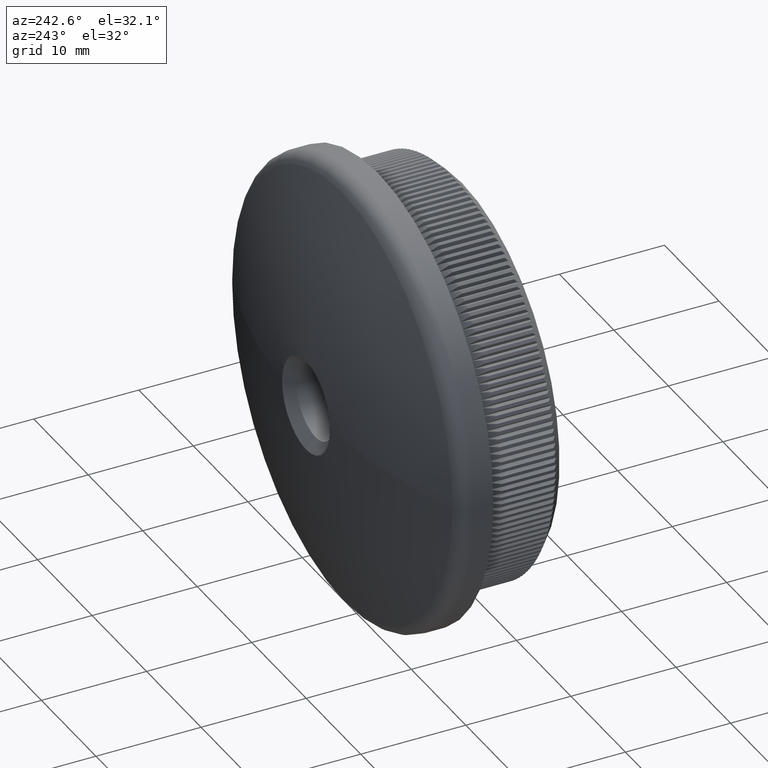
[diagram: clean part render]
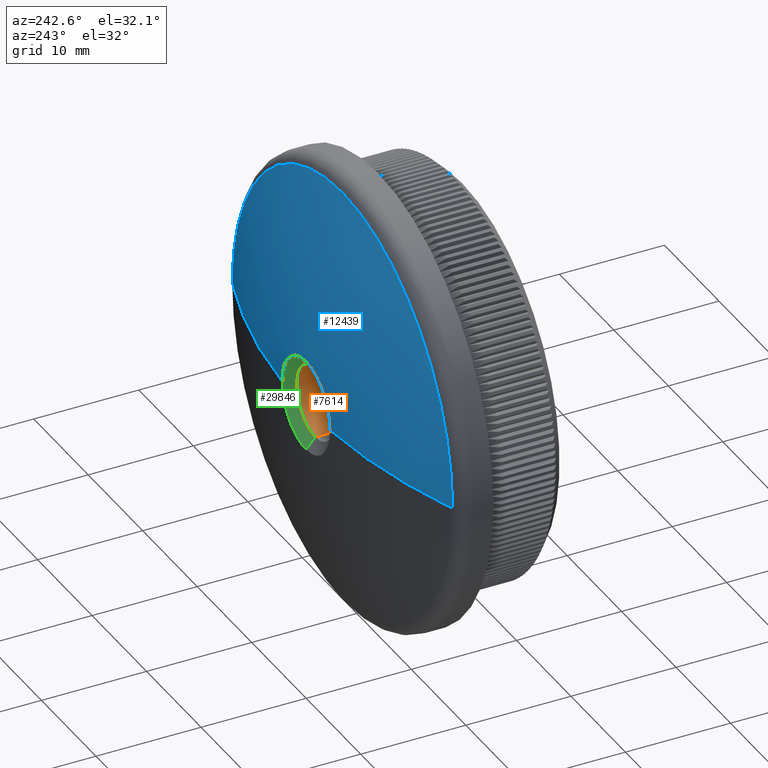
[diagram: same view with three faces highlighted in distinct colors, each labeled with its STEP entity id]
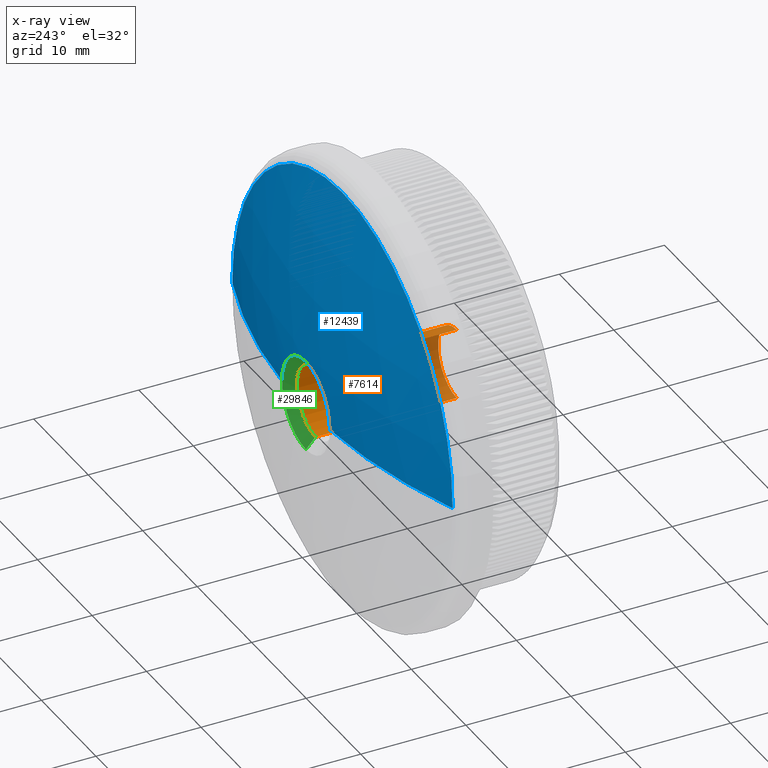
[diagram: x-ray of the same camera — body ghosted, the three highlighted faces saturated]
A machine part, auxiliary view with three faces highlighted in distinct colors.
The next image is the same camera in x-ray (body ghosted, the three faces saturated) — at least one of them is partly hidden behind the body in this view.
Their STEP definitions:

[orange] entity #7614 — the highlighted cylindrical surface (partial cylindrical patch) has radius 3.4 mm, axis along (-0, -1, -0).
#51 = EDGE_LOOP ( 'NONE', ( #9037, #18004, #21177, #1727 ) ) ;
#55 = FACE_OUTER_BOUND ( 'NONE', #51, .T. ) ;
#161 = CARTESIAN_POINT ( 'NONE',  ( 0.0000000000000000000, 0.0000000000000000000, -3.399999999999995500 ) ) ;
#1148 = CYLINDRICAL_SURFACE ( 'NONE', #26260, 3.399999999999995500 ) ;
#1727 = ORIENTED_EDGE ( 'NONE', *, *, #22660, .T. ) ;
#2676 = CIRCLE ( 'NONE', #2975, 3.399999999999995500 ) ;
#2975 = AXIS2_PLACEMENT_3D ( 'NONE', #7852, #19501, #12114 ) ;
#6742 = CARTESIAN_POINT ( 'NONE',  ( 4.163799117100995600E-016, 0.4999999999999891800, 3.399999999999995500 ) ) ;
#6904 = CARTESIAN_POINT ( 'NONE',  ( 4.163799117100995600E-016, 0.0000000000000000000, 3.399999999999995500 ) ) ;
#7046 = DIRECTION ( 'NONE',  ( 0.0000000000000000000, -1.000000000000000000, 0.0000000000000000000 ) ) ;
#7483 = DIRECTION ( 'NONE',  ( -0.0000000000000000000, -1.000000000000000000, -0.0000000000000000000 ) ) ;
#7614 = ADVANCED_FACE ( 'NONE', ( #55 ), #1148, .F. ) ;
#7852 = CARTESIAN_POINT ( 'NONE',  ( 0.0000000000000000000, 13.95425291678296300, 0.0000000000000000000 ) ) ;
#8024 = DIRECTION ( 'NONE',  ( 0.0000000000000000000, 0.0000000000000000000, -1.000000000000000000 ) ) ;
#9037 = ORIENTED_EDGE ( 'NONE', *, *, #24092, .F. ) ;
#11079 = VECTOR ( 'NONE', #21351, 1000.000000000000000 ) ;
#12114 = DIRECTION ( 'NONE',  ( 0.0000000000000000000, 0.0000000000000000000, 1.000000000000000000 ) ) ;
#13156 = CARTESIAN_POINT ( 'NONE',  ( 4.163799117100995600E-016, 13.95425291678296300, 3.399999999999995500 ) ) ;
#14085 = DIRECTION ( 'NONE',  ( 0.0000000000000000000, 0.0000000000000000000, -1.000000000000000000 ) ) ;
#15915 = VERTEX_POINT ( 'NONE', #6742 ) ;
#18004 = ORIENTED_EDGE ( 'NONE', *, *, #19048, .T. ) ;
#18221 = LINE ( 'NONE', #161, #23782 ) ;
#18278 = VERTEX_POINT ( 'NONE', #22285 ) ;
#19048 = EDGE_CURVE ( 'NONE', #24992, #18278, #2676, .T. ) ;
#19501 = DIRECTION ( 'NONE',  ( 0.0000000000000000000, 1.000000000000000000, 0.0000000000000000000 ) ) ;
#20719 = LINE ( 'NONE', #6904, #11079 ) ;
#20941 = EDGE_CURVE ( 'NONE', #18278, #30266, #18221, .T. ) ;
#21177 = ORIENTED_EDGE ( 'NONE', *, *, #20941, .T. ) ;
#21351 = DIRECTION ( 'NONE',  ( -0.0000000000000000000, -1.000000000000000000, -0.0000000000000000000 ) ) ;
#21587 = CARTESIAN_POINT ( 'NONE',  ( 0.0000000000000000000, 0.4999999999999891800, 0.0000000000000000000 ) ) ;
#22244 = CARTESIAN_POINT ( 'NONE',  ( 0.0000000000000000000, 0.0000000000000000000, 0.0000000000000000000 ) ) ;
#22285 = CARTESIAN_POINT ( 'NONE',  ( 0.0000000000000000000, 13.95425291678296300, -3.399999999999995500 ) ) ;
#22660 = EDGE_CURVE ( 'NONE', #30266, #15915, #27484, .T. ) ;
#23782 = VECTOR ( 'NONE', #7483, 1000.000000000000000 ) ;
#24092 = EDGE_CURVE ( 'NONE', #24992, #15915, #20719, .T. ) ;
#24992 = VERTEX_POINT ( 'NONE', #13156 ) ;
#26260 = AXIS2_PLACEMENT_3D ( 'NONE', #22244, #29514, #8024 ) ;
#27484 = CIRCLE ( 'NONE', #28699, 3.399999999999995500 ) ;
#28056 = CARTESIAN_POINT ( 'NONE',  ( 0.0000000000000000000, 0.4999999999999891800, -3.399999999999995500 ) ) ;
#28699 = AXIS2_PLACEMENT_3D ( 'NONE', #21587, #7046, #14085 ) ;
#29514 = DIRECTION ( 'NONE',  ( -0.0000000000000000000, -1.000000000000000000, -0.0000000000000000000 ) ) ;
#30266 = VERTEX_POINT ( 'NONE', #28056 ) ;

[blue] entity #12439 — the highlighted spherical surface has radius 58.18 mm.
#776 = DIRECTION ( 'NONE',  ( 0.0000000000000000000, 0.0000000000000000000, -1.000000000000000000 ) ) ;
#942 = CIRCLE ( 'NONE', #27577, 20.22134791813691000 ) ;
#1016 = CARTESIAN_POINT ( 'NONE',  ( 20.22134791813689200, 11.37281375303809700, 0.0000000000000000000 ) ) ;
#1442 = EDGE_CURVE ( 'NONE', #20355, #29121, #9129, .T. ) ;
#1450 = DIRECTION ( 'NONE',  ( 0.0000000000000000000, 1.000000000000000000, 0.0000000000000000000 ) ) ;
#1729 = DIRECTION ( 'NONE',  ( 0.0000000000000000000, 0.0000000000000000000, -1.000000000000000000 ) ) ;
#1864 = AXIS2_PLACEMENT_3D ( 'NONE', #22533, #12372, #8332 ) ;
#1999 = CIRCLE ( 'NONE', #22774, 20.22134791813691000 ) ;
#2612 = EDGE_CURVE ( 'NONE', #14771, #30738, #942, .T. ) ;
#3961 = CIRCLE ( 'NONE', #17474, 4.389361584043620600 ) ;
#4069 = ORIENTED_EDGE ( 'NONE', *, *, #28553, .T. ) ;
#4518 = CARTESIAN_POINT ( 'NONE',  ( 4.389361584043620600, 14.83418710009236300, 0.0000000000000000000 ) ) ;
#5820 = AXIS2_PLACEMENT_3D ( 'NONE', #8603, #13349, #27908 ) ;
#8332 = DIRECTION ( 'NONE',  ( 1.000000000000000000, 0.0000000000000000000, 0.0000000000000000000 ) ) ;
#8551 = EDGE_LOOP ( 'NONE', ( #22003, #28636, #27689, #23405, #4069, #12390 ) ) ;
#8603 = CARTESIAN_POINT ( 'NONE',  ( 0.0000000000000000000, -43.18000000000007100, 0.0000000000000000000 ) ) ;
#9129 = CIRCLE ( 'NONE', #10286, 58.18000000000007100 ) ;
#9301 = DIRECTION ( 'NONE',  ( 0.0000000000000000000, 0.0000000000000000000, -1.000000000000000000 ) ) ;
#9416 = DIRECTION ( 'NONE',  ( 0.0000000000000000000, 1.000000000000000000, 0.0000000000000000000 ) ) ;
#10286 = AXIS2_PLACEMENT_3D ( 'NONE', #21845, #24218, #26510 ) ;
#11330 = VERTEX_POINT ( 'NONE', #17830 ) ;
#11787 = FACE_OUTER_BOUND ( 'NONE', #8551, .T. ) ;
#12061 = CIRCLE ( 'NONE', #30115, 4.389361584043620600 ) ;
#12372 = DIRECTION ( 'NONE',  ( 0.0000000000000000000, 0.0000000000000000000, 1.000000000000000000 ) ) ;
#12390 = ORIENTED_EDGE ( 'NONE', *, *, #1442, .F. ) ;
#12439 = ADVANCED_FACE ( 'NONE', ( #11787 ), #15120, .T. ) ;
#13349 = DIRECTION ( 'NONE',  ( 1.224646799147353200E-016, -0.0000000000000000000, 1.000000000000000000 ) ) ;
#13422 = DIRECTION ( 'NONE',  ( 0.0000000000000000000, 0.0000000000000000000, -1.000000000000000000 ) ) ;
#14528 = CARTESIAN_POINT ( 'NONE',  ( -20.22134791813689200, 11.37281375303809700, 2.476400900239134100E-015 ) ) ;
#14771 = VERTEX_POINT ( 'NONE', #14528 ) ;
#15120 = SPHERICAL_SURFACE ( 'NONE', #1864, 58.18000000000007100 ) ;
#15412 = EDGE_CURVE ( 'NONE', #20355, #27524, #12061, .T. ) ;
#15824 = CARTESIAN_POINT ( 'NONE',  ( 0.0000000000000000000, 11.37281375303810000, 0.0000000000000000000 ) ) ;
#16912 = DIRECTION ( 'NONE',  ( -0.0000000000000000000, -1.000000000000000000, -0.0000000000000000000 ) ) ;
#17220 = CARTESIAN_POINT ( 'NONE',  ( 0.0000000000000000000, 14.83418710009236300, 0.0000000000000000000 ) ) ;
#17474 = AXIS2_PLACEMENT_3D ( 'NONE', #17220, #16912, #776 ) ;
#17830 = CARTESIAN_POINT ( 'NONE',  ( -4.389361584043620600, 14.83418710009236300, 1.506971330829536000E-015 ) ) ;
#19473 = CARTESIAN_POINT ( 'NONE',  ( 0.0000000000000000000, 14.83418710009236300, 4.389361584043635700 ) ) ;
#19513 = EDGE_CURVE ( 'NONE', #27524, #11330, #3961, .T. ) ;
#20294 = CARTESIAN_POINT ( 'NONE',  ( 0.0000000000000000000, 14.83418710009236300, 0.0000000000000000000 ) ) ;
#20355 = VERTEX_POINT ( 'NONE', #4518 ) ;
#21845 = CARTESIAN_POINT ( 'NONE',  ( 0.0000000000000000000, -43.18000000000007100, 0.0000000000000000000 ) ) ;
#22003 = ORIENTED_EDGE ( 'NONE', *, *, #15412, .T. ) ;
#22533 = CARTESIAN_POINT ( 'NONE',  ( 0.0000000000000000000, -43.18000000000007100, 0.0000000000000000000 ) ) ;
#22720 = CARTESIAN_POINT ( 'NONE',  ( 2.536326057215763400E-015, 11.37281375303810000, 20.22134791813691000 ) ) ;
#22774 = AXIS2_PLACEMENT_3D ( 'NONE', #15824, #1450, #13422 ) ;
#23405 = ORIENTED_EDGE ( 'NONE', *, *, #2612, .T. ) ;
#23481 = CARTESIAN_POINT ( 'NONE',  ( 0.0000000000000000000, 11.37281375303810000, 0.0000000000000000000 ) ) ;
#23633 = EDGE_CURVE ( 'NONE', #11330, #14771, #27425, .T. ) ;
#24218 = DIRECTION ( 'NONE',  ( 0.0000000000000000000, 0.0000000000000000000, -1.000000000000000000 ) ) ;
#26510 = DIRECTION ( 'NONE',  ( -1.000000000000000000, 0.0000000000000000000, 0.0000000000000000000 ) ) ;
#27425 = CIRCLE ( 'NONE', #5820, 58.18000000000007100 ) ;
#27440 = DIRECTION ( 'NONE',  ( -0.0000000000000000000, -1.000000000000000000, -0.0000000000000000000 ) ) ;
#27524 = VERTEX_POINT ( 'NONE', #19473 ) ;
#27577 = AXIS2_PLACEMENT_3D ( 'NONE', #23481, #9416, #9301 ) ;
#27689 = ORIENTED_EDGE ( 'NONE', *, *, #23633, .T. ) ;
#27908 = DIRECTION ( 'NONE',  ( 1.000000000000000000, 0.0000000000000000000, -1.224646799147353500E-016 ) ) ;
#28553 = EDGE_CURVE ( 'NONE', #30738, #29121, #1999, .T. ) ;
#28636 = ORIENTED_EDGE ( 'NONE', *, *, #19513, .T. ) ;
#29121 = VERTEX_POINT ( 'NONE', #1016 ) ;
#30115 = AXIS2_PLACEMENT_3D ( 'NONE', #20294, #27440, #1729 ) ;
#30738 = VERTEX_POINT ( 'NONE', #22720 ) ;

[green] entity #29846 — the highlighted conical surface has half-angle 48.35 deg.
#455 = VECTOR ( 'NONE', #16109, 1000.000000000000100 ) ;
#866 = DIRECTION ( 'NONE',  ( 0.0000000000000000000, 0.6645754650830519900, 0.7472211528119671000 ) ) ;
#1729 = DIRECTION ( 'NONE',  ( 0.0000000000000000000, 0.0000000000000000000, -1.000000000000000000 ) ) ;
#2080 = DIRECTION ( 'NONE',  ( 0.0000000000000000000, 0.0000000000000000000, -1.000000000000000000 ) ) ;
#2676 = CIRCLE ( 'NONE', #2975, 3.399999999999995500 ) ;
#2911 = EDGE_LOOP ( 'NONE', ( #12315, #20265, #18669, #19772, #17015 ) ) ;
#2975 = AXIS2_PLACEMENT_3D ( 'NONE', #7852, #19501, #12114 ) ;
#3546 = CARTESIAN_POINT ( 'NONE',  ( 0.0000000000000000000, 14.83418710009236300, 0.0000000000000000000 ) ) ;
#4518 = CARTESIAN_POINT ( 'NONE',  ( 4.389361584043620600, 14.83418710009236300, 0.0000000000000000000 ) ) ;
#5312 = FACE_OUTER_BOUND ( 'NONE', #2911, .T. ) ;
#6818 = EDGE_CURVE ( 'NONE', #18278, #18180, #10456, .T. ) ;
#7041 = EDGE_CURVE ( 'NONE', #18180, #20355, #16330, .T. ) ;
#7852 = CARTESIAN_POINT ( 'NONE',  ( 0.0000000000000000000, 13.95425291678296300, 0.0000000000000000000 ) ) ;
#8252 = CARTESIAN_POINT ( 'NONE',  ( 0.0000000000000000000, 13.95425291678296300, 0.0000000000000000000 ) ) ;
#10456 = LINE ( 'NONE', #30247, #455 ) ;
#12061 = CIRCLE ( 'NONE', #30115, 4.389361584043620600 ) ;
#12114 = DIRECTION ( 'NONE',  ( 0.0000000000000000000, 0.0000000000000000000, 1.000000000000000000 ) ) ;
#12315 = ORIENTED_EDGE ( 'NONE', *, *, #6818, .F. ) ;
#13156 = CARTESIAN_POINT ( 'NONE',  ( 4.163799117100995600E-016, 13.95425291678296300, 3.399999999999995500 ) ) ;
#14409 = EDGE_CURVE ( 'NONE', #24992, #27524, #26944, .T. ) ;
#14755 = CARTESIAN_POINT ( 'NONE',  ( 0.0000000000000000000, 13.95425291678296300, 3.399999999999995500 ) ) ;
#15412 = EDGE_CURVE ( 'NONE', #20355, #27524, #12061, .T. ) ;
#15523 = AXIS2_PLACEMENT_3D ( 'NONE', #3546, #22508, #2080 ) ;
#16109 = DIRECTION ( 'NONE',  ( 9.150819930463708100E-017, 0.6645754650830519900, -0.7472211528119671000 ) ) ;
#16330 = CIRCLE ( 'NONE', #15523, 4.389361584043620600 ) ;
#17015 = ORIENTED_EDGE ( 'NONE', *, *, #7041, .F. ) ;
#17229 = AXIS2_PLACEMENT_3D ( 'NONE', #8252, #27230, #19988 ) ;
#18180 = VERTEX_POINT ( 'NONE', #28753 ) ;
#18278 = VERTEX_POINT ( 'NONE', #22285 ) ;
#18669 = ORIENTED_EDGE ( 'NONE', *, *, #14409, .T. ) ;
#19048 = EDGE_CURVE ( 'NONE', #24992, #18278, #2676, .T. ) ;
#19473 = CARTESIAN_POINT ( 'NONE',  ( 0.0000000000000000000, 14.83418710009236300, 4.389361584043635700 ) ) ;
#19501 = DIRECTION ( 'NONE',  ( 0.0000000000000000000, 1.000000000000000000, 0.0000000000000000000 ) ) ;
#19772 = ORIENTED_EDGE ( 'NONE', *, *, #15412, .F. ) ;
#19988 = DIRECTION ( 'NONE',  ( 0.0000000000000000000, 0.0000000000000000000, 1.000000000000000000 ) ) ;
#20265 = ORIENTED_EDGE ( 'NONE', *, *, #19048, .F. ) ;
#20294 = CARTESIAN_POINT ( 'NONE',  ( 0.0000000000000000000, 14.83418710009236300, 0.0000000000000000000 ) ) ;
#20355 = VERTEX_POINT ( 'NONE', #4518 ) ;
#22285 = CARTESIAN_POINT ( 'NONE',  ( 0.0000000000000000000, 13.95425291678296300, -3.399999999999995500 ) ) ;
#22508 = DIRECTION ( 'NONE',  ( -0.0000000000000000000, -1.000000000000000000, -0.0000000000000000000 ) ) ;
#24992 = VERTEX_POINT ( 'NONE', #13156 ) ;
#26196 = VECTOR ( 'NONE', #866, 1000.000000000000100 ) ;
#26944 = LINE ( 'NONE', #14755, #26196 ) ;
#27201 = CONICAL_SURFACE ( 'NONE', #17229, 3.399999999999995500, 0.8438708040748624800 ) ;
#27230 = DIRECTION ( 'NONE',  ( 0.0000000000000000000, 1.000000000000000000, 0.0000000000000000000 ) ) ;
#27440 = DIRECTION ( 'NONE',  ( -0.0000000000000000000, -1.000000000000000000, -0.0000000000000000000 ) ) ;
#27524 = VERTEX_POINT ( 'NONE', #19473 ) ;
#28753 = CARTESIAN_POINT ( 'NONE',  ( 5.375417614199396000E-016, 14.83418710009236300, -4.389361584043635700 ) ) ;
#29846 = ADVANCED_FACE ( 'NONE', ( #5312 ), #27201, .F. ) ;
#30115 = AXIS2_PLACEMENT_3D ( 'NONE', #20294, #27440, #1729 ) ;
#30247 = CARTESIAN_POINT ( 'NONE',  ( 4.163799117100995600E-016, 13.95425291678296300, -3.399999999999995500 ) ) ;